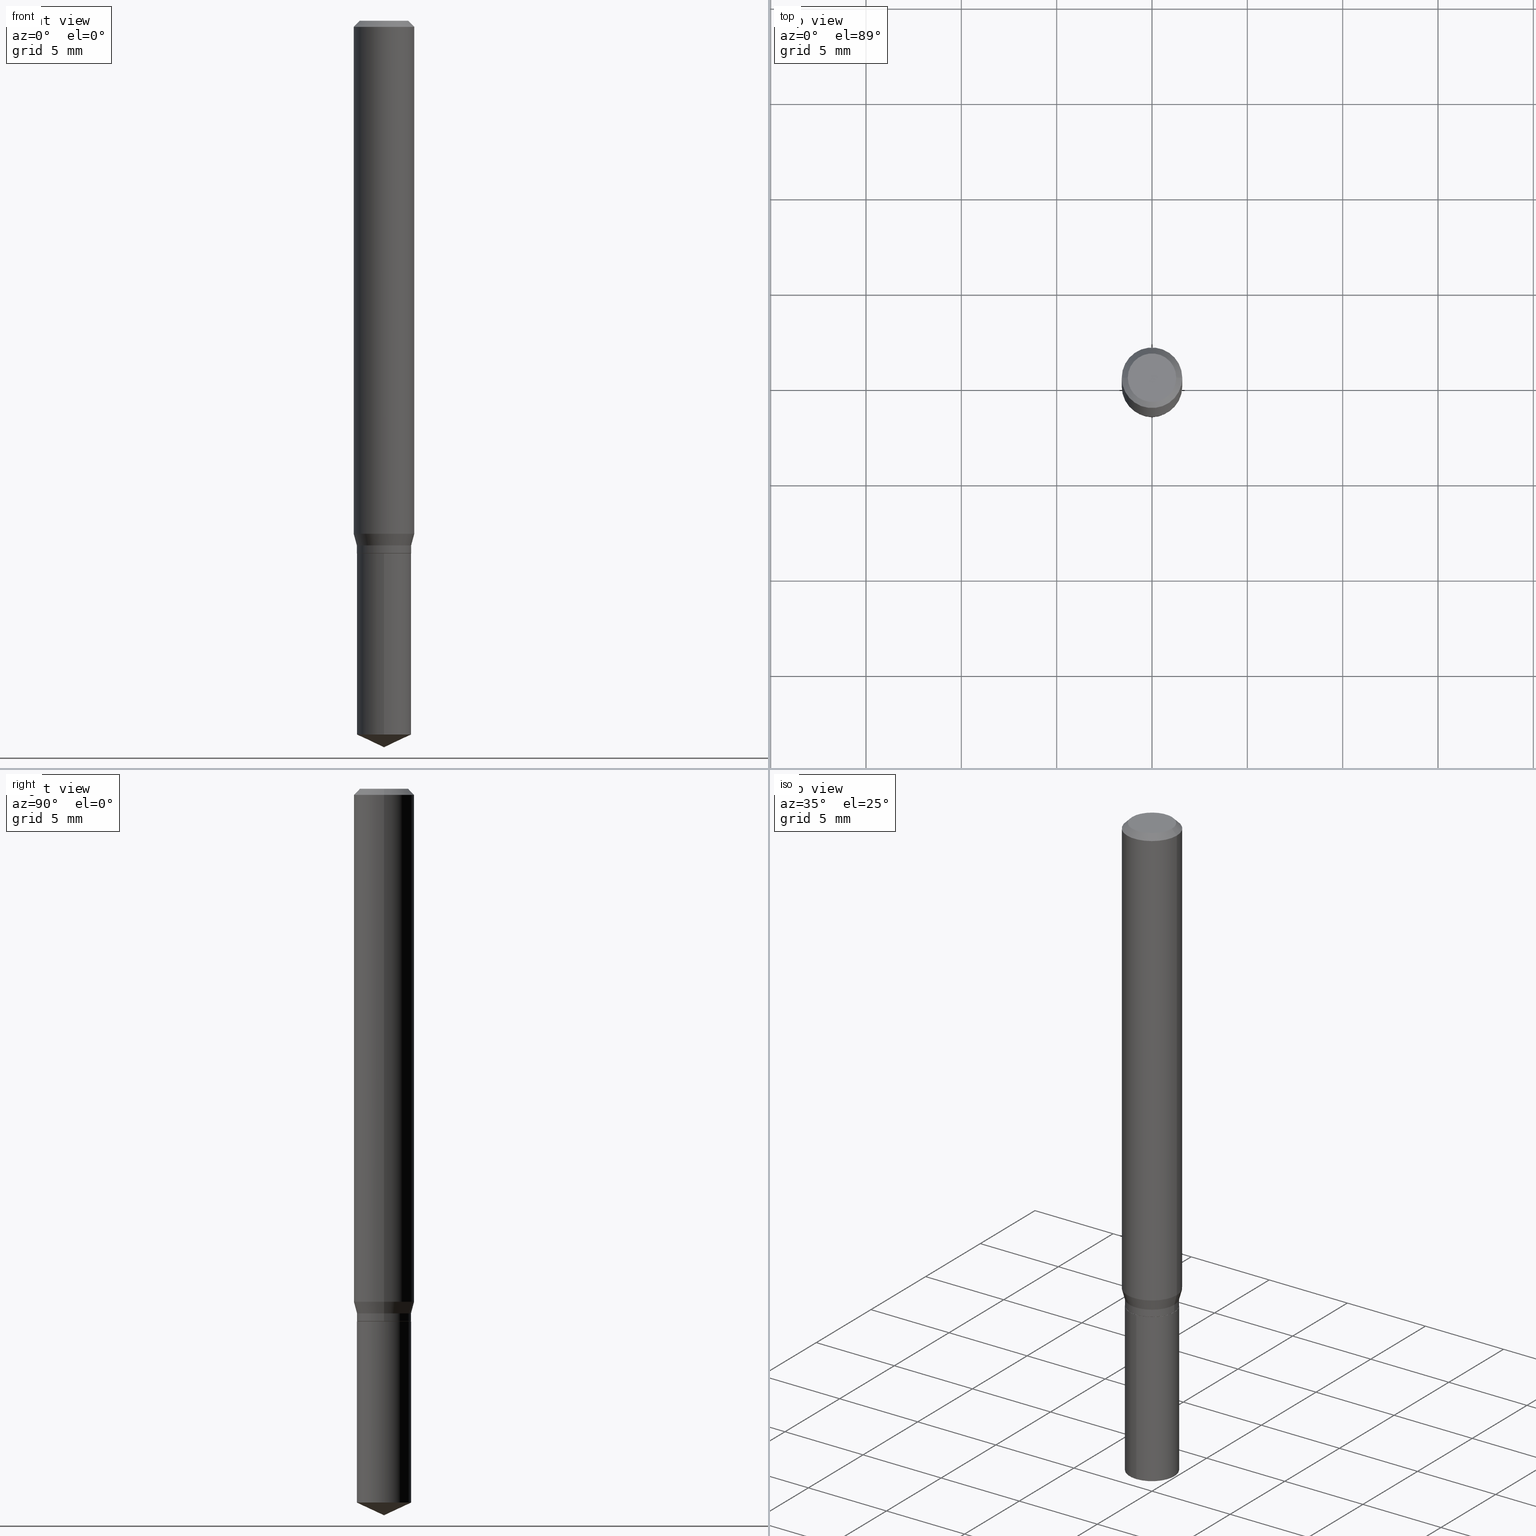
[diagram: canonical four-view strip — front | top / right | iso, engineering-drawing reading convention]
A machine part, canonical four-view strip (front | top / right | iso — engineering-drawing reading convention). The complete STEP part file that produces these views, byte-faithful:
ISO-10303-21;
HEADER;
FILE_DESCRIPTION (( 'STEP AP203' ),
    '1' );
FILE_NAME ('07389.STEP',
    '2024-04-23T20:58:32',
    ( '' ),
    ( '' ),
    'SwSTEP 2.0',
    'SolidWorks 2023',
    '' );
FILE_SCHEMA (( 'CONFIG_CONTROL_DESIGN' ));
ENDSEC;

DATA;
#1 = FACE_OUTER_BOUND ( 'NONE', #128, .T. ) ;
#2 = ORIENTED_EDGE ( 'NONE', *, *, #382, .T. ) ;
#3 = VERTEX_POINT ( 'NONE', #359 ) ;
#4 = EDGE_CURVE ( 'NONE', #3, #78, #45, .T. ) ;
#5 = CARTESIAN_POINT ( 'NONE',  ( -9.260740279983036507E-28, 1.322265303911854087E-13, 37.87007874015748143 ) ) ;
#6 = VECTOR ( 'NONE', #177, 39.37007874015748143 ) ;
#7 = ORIENTED_EDGE ( 'NONE', *, *, #141, .T. ) ;
#8 = CONICAL_SURFACE ( 'NONE', #446, 0.06250000000000000000, 0.7853981633974452814 ) ;
#9 = CARTESIAN_POINT ( 'NONE',  ( 0.05610000000000000403, -4.230627938276238198E-15, -1.099499999999999922 ) ) ;
#10 = ORIENTED_EDGE ( 'NONE', *, *, #224, .F. ) ;
#11 = DIMENSIONAL_EXPONENTS ( 1.000000000000000000, 0.000000000000000000, 0.000000000000000000, 0.000000000000000000, 0.000000000000000000, 0.000000000000000000, 0.000000000000000000 ) ;
#12 = CARTESIAN_POINT ( 'NONE',  ( 2.648931810859739974E-29, -3.781972586234896004E-15, -1.083200000000000163 ) ) ;
#13 = APPROVAL_ROLE ( '' ) ;
#14 = CARTESIAN_POINT ( 'NONE',  ( 0.05610000000000000403, -4.173716792453095604E-15, -1.083200000000000163 ) ) ;
#15 = EDGE_CURVE ( 'NONE', #149, #457, #314, .T. ) ;
#16 = CALENDAR_DATE ( 2024, 23, 4 ) ;
#17 = CARTESIAN_POINT ( 'NONE',  ( 3.986144747614522247E-16, 0.05609999999999615988, -1.100000000000000089 ) ) ;
#18 = VECTOR ( 'NONE', #377, 39.37007874015748143 ) ;
#19 = FACE_OUTER_BOUND ( 'NONE', #420, .T. ) ;
#20 = FACE_OUTER_BOUND ( 'NONE', #33, .T. ) ;
#21 = DIRECTION ( 'NONE',  ( 1.000000000000000000, -6.982962677686266711E-15, 0.000000000000000000 ) ) ;
#22 = DIRECTION ( 'NONE',  ( 1.000000000000000000, -6.982962677686266711E-15, 0.000000000000000000 ) ) ;
#23 = ADVANCED_FACE ( 'NONE', ( #53 ), #168, .T. ) ;
#24 = DIRECTION ( 'NONE',  ( -1.000000000000000000, 6.982962677686266711E-15, 0.000000000000000000 ) ) ;
#25 = DATE_TIME_ROLE ( 'creation_date' ) ;
#26 = DIRECTION ( 'NONE',  ( -2.445468806185136597E-29, 3.491481338843145583E-15, 1.000000000000000000 ) ) ;
#27 = FACE_OUTER_BOUND ( 'NONE', #447, .T. ) ;
#28 = PERSON_AND_ORGANIZATION_ROLE ( 'design_supplier' ) ;
#29 = VERTEX_POINT ( 'NONE', #132 ) ;
#30 = PRODUCT_RELATED_PRODUCT_CATEGORY ( 'detail', '', ( #117 ) ) ;
#31 = DIRECTION ( 'NONE',  ( 1.000000000000000000, -6.982962677686266711E-15, 0.000000000000000000 ) ) ;
#32 = CARTESIAN_POINT ( 'NONE',  ( 0.06250000000000012490, -4.135013284788742571E-15, -1.059314874831558839 ) ) ;
#33 = EDGE_LOOP ( 'NONE', ( #159, #130, #209, #378 ) ) ;
#34 = DIRECTION ( 'NONE',  ( 1.000000000000000000, -6.982962677686266711E-15, 0.000000000000000000 ) ) ;
#35 = DATE_AND_TIME ( #161, #108 ) ;
#36 = AXIS2_PLACEMENT_3D ( 'NONE', #407, #187, #31 ) ;
#37 = APPROVAL_PERSON_ORGANIZATION ( #309, #409, #241 ) ;
#38 = VECTOR ( 'NONE', #225, 39.37007874015748854 ) ;
#39 = CARTESIAN_POINT ( 'NONE',  ( -0.06250000000000012490, -3.254488907583286707E-15, -1.059314874831558839 ) ) ;
#40 = EDGE_LOOP ( 'NONE', ( #73, #426, #363, #157 ) ) ;
#41 = EDGE_CURVE ( 'NONE', #277, #90, #95, .T. ) ;
#42 = DIRECTION ( 'NONE',  ( -6.328713451373362279E-15, -0.9063077870366474942, 0.4226182617407045483 ) ) ;
#43 = ADVANCED_BREP_SHAPE_REPRESENTATION ( '07389', ( #163, #174, #279 ), #218 ) ;
#44 = APPROVAL_PERSON_ORGANIZATION ( #255, #352, #432 ) ;
#45 = LINE ( 'NONE', #134, #394 ) ;
#46 = CIRCLE ( 'NONE', #91, 0.05610000000000000403 ) ;
#47 = ORIENTED_EDGE ( 'NONE', *, *, #123, .T. ) ;
#48 = EDGE_CURVE ( 'NONE', #345, #29, #286, .T. ) ;
#49 = DIRECTION ( 'NONE',  ( 6.982962677686265922E-15, 1.000000000000000000, -3.491580316559632610E-15 ) ) ;
#50 = ORIENTED_EDGE ( 'NONE', *, *, #416, .T. ) ;
#51 =( NAMED_UNIT ( * ) SI_UNIT ( $, .STERADIAN. ) SOLID_ANGLE_UNIT ( ) );
#52 = AXIS2_PLACEMENT_3D ( 'NONE', #76, #302, #240 ) ;
#53 = FACE_OUTER_BOUND ( 'NONE', #40, .T. ) ;
#54 = CC_DESIGN_SECURITY_CLASSIFICATION ( #475, ( #435 ) ) ;
#55 = DIRECTION ( 'NONE',  ( 1.000000000000000000, -6.982962677686266711E-15, 0.000000000000000000 ) ) ;
#56 = PERSON_AND_ORGANIZATION ( #328, #97 ) ;
#57 = CARTESIAN_POINT ( 'NONE',  ( 0.05559999999999999665, -4.228882197606816695E-15, -1.100000000000000089 ) ) ;
#58 = LINE ( 'NONE', #186, #268 ) ;
#59 = DIRECTION ( 'NONE',  ( -2.445468806185136597E-29, 3.491481338843145583E-15, 1.000000000000000000 ) ) ;
#60 = ADVANCED_FACE ( 'NONE', ( #215 ), #109, .T. ) ;
#61 = CLOSED_SHELL ( 'NONE', ( #318, #64, #467, #385, #454 ) ) ;
#62 = AXIS2_PLACEMENT_3D ( 'NONE', #340, #230, #444 ) ;
#63 = CARTESIAN_POINT ( 'NONE',  ( 2.690015686803650369E-29, -3.840629472727460101E-15, -1.100000000000000089 ) ) ;
#64 = ADVANCED_FACE ( 'NONE', ( #332 ), #387, .T. ) ;
#65 = DIRECTION ( 'NONE',  ( 1.000000000000000000, -6.982962677686265922E-15, 4.876176775795935793E-29 ) ) ;
#66 = FACE_OUTER_BOUND ( 'NONE', #310, .T. ) ;
#67 = DIRECTION ( 'NONE',  ( 2.445468806185136597E-29, -3.491481338843145583E-15, -1.000000000000000000 ) ) ;
#68 = LOCAL_TIME ( 16, 58, 32.00000000000000000, #367 ) ;
#69 = DIRECTION ( 'NONE',  ( -2.445468806185136597E-29, 3.491481338843145583E-15, 1.000000000000000000 ) ) ;
#70 = MECHANICAL_CONTEXT ( 'NONE', #267, 'mechanical' ) ;
#71 = ADVANCED_FACE ( 'NONE', ( #290 ), #289, .T. ) ;
#72 = CARTESIAN_POINT ( 'NONE',  ( -0.05610000000000000403, -3.411813684385050821E-15, -1.099499999999999922 ) ) ;
#73 = ORIENTED_EDGE ( 'NONE', *, *, #371, .F. ) ;
#74 = CARTESIAN_POINT ( 'NONE',  ( -0.06250000000000000000, -1.427021607234381037E-15, -0.01250000000000008223 ) ) ;
#75 = ORIENTED_EDGE ( 'NONE', *, *, #287, .F. ) ;
#76 = CARTESIAN_POINT ( 'NONE',  ( 2.690015686803650369E-29, -3.840629472727460101E-15, -1.100000000000000089 ) ) ;
#77 = COORDINATED_UNIVERSAL_TIME_OFFSET ( 5, 0, .BEHIND. ) ;
#78 = VERTEX_POINT ( 'NONE', #17 ) ;
#79 = CARTESIAN_POINT ( 'NONE',  ( -3.917442062181726311E-16, -0.05610000000000384124, -1.099999999999999867 ) ) ;
#80 = APPROVAL_STATUS ( 'not_yet_approved' ) ;
#81 = CIRCLE ( 'NONE', #221, 0.06250000000000000000 ) ;
#82 = AXIS2_PLACEMENT_3D ( 'NONE', #293, #400, #434 ) ;
#83 = ADVANCED_FACE ( 'NONE', ( #19 ), #142, .T. ) ;
#84 = DATE_AND_TIME ( #425, #219 ) ;
#85 = SHAPE_DEFINITION_REPRESENTATION ( #104, #43 ) ;
#86 = LINE ( 'NONE', #242, #88 ) ;
#87 = ORIENTED_EDGE ( 'NONE', *, *, #48, .T. ) ;
#88 = VECTOR ( 'NONE', #206, 39.37007874015748143 ) ;
#89 = EDGE_CURVE ( 'NONE', #78, #356, #162, .T. ) ;
#90 = VERTEX_POINT ( 'NONE', #179 ) ;
#91 = AXIS2_PLACEMENT_3D ( 'NONE', #258, #473, #254 ) ;
#92 = CARTESIAN_POINT ( 'NONE',  ( -0.05559999999999999665, -3.445567711644844521E-15, -1.100000000000000089 ) ) ;
#93 = DIRECTION ( 'NONE',  ( 1.000000000000000000, -6.982962677686265922E-15, 4.875957971899673662E-29 ) ) ;
#94 = PERSON_AND_ORGANIZATION ( #328, #97 ) ;
#95 = LINE ( 'NONE', #391, #361 ) ;
#96 = CALENDAR_DATE ( 2024, 23, 4 ) ;
#97 = ORGANIZATION ( 'UNSPECIFIED', 'UNSPECIFIED', '' ) ;
#98 = ORIENTED_EDGE ( 'NONE', *, *, #276, .T. ) ;
#99 = CC_DESIGN_DATE_AND_TIME_ASSIGNMENT ( #330, #25, ( #427 ) ) ;
#100 = LINE ( 'NONE', #362, #403 ) ;
#101 = DIRECTION ( 'NONE',  ( -2.445468806185136597E-29, 3.491481338843145583E-15, 1.000000000000000000 ) ) ;
#102 = DIRECTION ( 'NONE',  ( -2.445468806185136597E-29, 3.491481338843145583E-15, 1.000000000000000000 ) ) ;
#103 =( CONVERSION_BASED_UNIT ( 'INCH', #288 ) LENGTH_UNIT ( ) NAMED_UNIT ( #11 ) );
#104 = PRODUCT_DEFINITION_SHAPE ( 'NONE', 'NONE',  #427 ) ;
#105 = DIRECTION ( 'NONE',  ( 1.000000000000000000, -6.982962677686264344E-15, 0.000000000000000000 ) ) ;
#106 = LINE ( 'NONE', #430, #321 ) ;
#107 = EDGE_CURVE ( 'NONE', #452, #278, #445, .T. ) ;
#108 = LOCAL_TIME ( 16, 58, 32.00000000000000000, #77 ) ;
#109 = CONICAL_SURFACE ( 'NONE', #468, 0.05559999999999999665, 0.7853981633974141952 ) ;
#110 = AXIS2_PLACEMENT_3D ( 'NONE', #5, #171, #460 ) ;
#111 = DIRECTION ( 'NONE',  ( 2.445468806185136597E-29, -3.491481338843145583E-15, -1.000000000000000000 ) ) ;
#112 = DIRECTION ( 'NONE',  ( -2.445468806185136597E-29, 3.491481338843145583E-15, 1.000000000000000000 ) ) ;
#113 = EDGE_CURVE ( 'NONE', #278, #452, #402, .T. ) ;
#114 = CALENDAR_DATE ( 2024, 23, 4 ) ;
#115 = PLANE ( 'NONE',  #62 ) ;
#116 = ORIENTED_EDGE ( 'NONE', *, *, #4, .T. ) ;
#117 = PRODUCT ( '07389', '07389', '', ( #70 ) ) ;
#118 = EDGE_LOOP ( 'NONE', ( #449, #75 ) ) ;
#119 = DIRECTION ( 'NONE',  ( -2.445468806185136597E-29, 3.491481338843145583E-15, 1.000000000000000000 ) ) ;
#120 = DIRECTION ( 'NONE',  ( -1.000000000000000000, 6.982962677686266711E-15, 0.000000000000000000 ) ) ;
#121 = DATE_TIME_ROLE ( 'classification_date' ) ;
#122 = ORIENTED_EDGE ( 'NONE', *, *, #41, .F. ) ;
#123 = EDGE_CURVE ( 'NONE', #90, #151, #458, .T. ) ;
#124 = LOCAL_TIME ( 16, 58, 32.00000000000000000, #229 ) ;
#125 = ORIENTED_EDGE ( 'NONE', *, *, #252, .T. ) ;
#126 = ORIENTED_EDGE ( 'NONE', *, *, #461, .T. ) ;
#127 = EDGE_CURVE ( 'NONE', #356, #78, #298, .T. ) ;
#128 = EDGE_LOOP ( 'NONE', ( #176, #415 ) ) ;
#129 = AXIS2_PLACEMENT_3D ( 'NONE', #296, #213, #139 ) ;
#130 = ORIENTED_EDGE ( 'NONE', *, *, #312, .T. ) ;
#131 = AXIS2_PLACEMENT_3D ( 'NONE', #140, #184, #438 ) ;
#132 = CARTESIAN_POINT ( 'NONE',  ( -3.917442062181634113E-16, -0.05610000000000514575, -1.473840140377504326 ) ) ;
#133 = DIRECTION ( 'NONE',  ( 0.000000000000000000, 0.000000000000000000, 1.000000000000000000 ) ) ;
#134 = CARTESIAN_POINT ( 'NONE',  ( 3.986144747614430049E-16, 0.05609999999999615988, -1.100000000000000089 ) ) ;
#135 = ADVANCED_FACE ( 'NONE', ( #476 ), #366, .F. ) ;
#136 = APPLICATION_PROTOCOL_DEFINITION ( 'international standard', 'config_control_design', 1994, #453 ) ;
#137 = DIRECTION ( 'NONE',  ( -2.438088387897960049E-29, 3.491481338843145188E-15, 1.000000000000000000 ) ) ;
#138 = APPROVAL_STATUS ( 'not_yet_approved' ) ;
#139 = DIRECTION ( 'NONE',  ( 1.000000000000000000, -6.982962677686264344E-15, 0.000000000000000000 ) ) ;
#140 = CARTESIAN_POINT ( 'NONE',  ( 0.000000000000000000, 0.000000000000000000, 0.000000000000000000 ) ) ;
#141 = EDGE_CURVE ( 'NONE', #457, #249, #106, .T. ) ;
#142 = CYLINDRICAL_SURFACE ( 'NONE', #189, 0.05610000000000000403 ) ;
#143 = CYLINDRICAL_SURFACE ( 'NONE', #369, 0.05610000000000000403 ) ;
#144 = CARTESIAN_POINT ( 'NONE',  ( -9.260740279983036507E-28, 1.322265303911854087E-13, 37.87007874015748143 ) ) ;
#145 = CARTESIAN_POINT ( 'NONE',  ( 2.690015686803650369E-29, -3.840629472727460101E-15, -1.100000000000000089 ) ) ;
#146 = CONICAL_SURFACE ( 'NONE', #331, 0.06250000000000000000, 0.7853981633974452814 ) ;
#147 = DIRECTION ( 'NONE',  ( -2.445399690415121530E-29, 3.491580316559632610E-15, 1.000000000000000000 ) ) ;
#148 = DIRECTION ( 'NONE',  ( -2.445399690415121810E-29, 3.491580316559632610E-15, 1.000000000000000000 ) ) ;
#149 = VERTEX_POINT ( 'NONE', #373 ) ;
#150 = COORDINATED_UNIVERSAL_TIME_OFFSET ( 5, 0, .BEHIND. ) ;
#151 = VERTEX_POINT ( 'NONE', #14 ) ;
#152 = AXIS2_PLACEMENT_3D ( 'NONE', #357, #319, #49 ) ;
#153 = APPROVAL_PERSON_ORGANIZATION ( #376, #365, #13 ) ;
#154 = CARTESIAN_POINT ( 'NONE',  ( 2.690015686803650369E-29, -3.840629472727460101E-15, -1.100000000000000089 ) ) ;
#155 = VECTOR ( 'NONE', #246, 39.37007874015748854 ) ;
#156 = EDGE_CURVE ( 'NONE', #485, #277, #46, .T. ) ;
#157 = ORIENTED_EDGE ( 'NONE', *, *, #382, .F. ) ;
#158 = EDGE_CURVE ( 'NONE', #278, #348, #404, .T. ) ;
#159 = ORIENTED_EDGE ( 'NONE', *, *, #4, .F. ) ;
#160 = DIRECTION ( 'NONE',  ( 1.000000000000000000, -6.982962677686266711E-15, 4.876176775795935793E-29 ) ) ;
#161 = CALENDAR_DATE ( 2024, 23, 4 ) ;
#162 = CIRCLE ( 'NONE', #180, 0.05610000000000000403 ) ;
#163 = MANIFOLD_SOLID_BREP ( 'Body-Move/Copy2[1]', #61 ) ;
#164 = EDGE_LOOP ( 'NONE', ( #231, #87, #202 ) ) ;
#165 = EDGE_CURVE ( 'NONE', #167, #485, #222, .T. ) ;
#166 = PLANE ( 'NONE',  #152 ) ;
#167 = VERTEX_POINT ( 'NONE', #372 ) ;
#168 = CYLINDRICAL_SURFACE ( 'NONE', #305, 0.06250000000000006939 ) ;
#169 = CIRCLE ( 'NONE', #257, 0.05559999999999999665 ) ;
#170 = CC_DESIGN_APPROVAL ( #352, ( #435 ) ) ;
#171 = DIRECTION ( 'NONE',  ( -2.445399690415121530E-29, 3.491580316559632610E-15, 1.000000000000000000 ) ) ;
#172 = AXIS2_PLACEMENT_3D ( 'NONE', #465, #59, #256 ) ;
#173 = CARTESIAN_POINT ( 'NONE',  ( 0.000000000000000000, 0.000000000000000000, 0.000000000000000000 ) ) ;
#174 = MANIFOLD_SOLID_BREP ( 'Body-Move/Copy2[2]', #237 ) ;
#175 = ADVANCED_FACE ( 'NONE', ( #185 ), #8, .T. ) ;
#176 = ORIENTED_EDGE ( 'NONE', *, *, #127, .T. ) ;
#177 = DIRECTION ( 'NONE',  ( -2.445468806185136877E-29, 3.491481338843145188E-15, 1.000000000000000000 ) ) ;
#178 = CARTESIAN_POINT ( 'NONE',  ( 0.000000000000000000, 0.000000000000000000, 0.000000000000000000 ) ) ;
#179 = CARTESIAN_POINT ( 'NONE',  ( -0.05610000000000000403, -3.411813684385050821E-15, -1.083200000000000163 ) ) ;
#180 = AXIS2_PLACEMENT_3D ( 'NONE', #63, #183, #291 ) ;
#181 = CIRCLE ( 'NONE', #244, 0.05610000000000000403 ) ;
#182 = EDGE_CURVE ( 'NONE', #29, #3, #275, .T. ) ;
#183 = DIRECTION ( 'NONE',  ( -2.445399690415121530E-29, 3.491580316559632610E-15, 1.000000000000000000 ) ) ;
#184 = DIRECTION ( 'NONE',  ( -2.445468806185136597E-29, 3.491481338843145583E-15, 1.000000000000000000 ) ) ;
#185 = FACE_OUTER_BOUND ( 'NONE', #451, .T. ) ;
#186 = CARTESIAN_POINT ( 'NONE',  ( 0.05610000000000000403, -4.173716792453095604E-15, -1.083200000000000163 ) ) ;
#187 = DIRECTION ( 'NONE',  ( -2.445468806185136597E-29, 3.491481338843145583E-15, 1.000000000000000000 ) ) ;
#188 = CARTESIAN_POINT ( 'NONE',  ( 3.604204250347545418E-29, -5.145922348409444387E-15, -1.473840140377504548 ) ) ;
#189 = AXIS2_PLACEMENT_3D ( 'NONE', #178, #326, #336 ) ;
#190 = DIRECTION ( 'NONE',  ( 1.000000000000000000, -6.982962677686266711E-15, 0.000000000000000000 ) ) ;
#191 = CC_DESIGN_PERSON_AND_ORGANIZATION_ASSIGNMENT ( #56, #264, ( #427 ) ) ;
#192 = EDGE_LOOP ( 'NONE', ( #386, #195 ) ) ;
#193 = SECURITY_CLASSIFICATION_LEVEL ( 'unclassified' ) ;
#194 = DIRECTION ( 'NONE',  ( -2.445468806185136597E-29, 3.491481338843145583E-15, 1.000000000000000000 ) ) ;
#195 = ORIENTED_EDGE ( 'NONE', *, *, #15, .T. ) ;
#196 = LINE ( 'NONE', #263, #18 ) ;
#197 = AXIS2_PLACEMENT_3D ( 'NONE', #344, #442, #410 ) ;
#198 = CARTESIAN_POINT ( 'NONE',  ( 3.668099535622682715E-29, -5.237370474839449507E-15, -1.500000000000000222 ) ) ;
#199 = EDGE_CURVE ( 'NONE', #457, #149, #281, .T. ) ;
#200 = AXIS2_PLACEMENT_3D ( 'NONE', #433, #101, #105 ) ;
#201 = AXIS2_PLACEMENT_3D ( 'NONE', #483, #412, #306 ) ;
#202 = ORIENTED_EDGE ( 'NONE', *, *, #312, .F. ) ;
#203 = FACE_OUTER_BOUND ( 'NONE', #421, .T. ) ;
#204 = ORIENTED_EDGE ( 'NONE', *, *, #262, .T. ) ;
#205 = CARTESIAN_POINT ( 'NONE',  ( 3.893286209682126177E-47, -5.558580879666067980E-33, -1.592040838891559689E-18 ) ) ;
#206 = DIRECTION ( 'NONE',  ( 0.7071067811865453523, -7.319954787623248157E-15, -0.7071067811865496822 ) ) ;
#207 = DIRECTION ( 'NONE',  ( -2.445399690415121810E-29, 3.491580316559632610E-15, 1.000000000000000000 ) ) ;
#208 = FACE_OUTER_BOUND ( 'NONE', #164, .T. ) ;
#209 = ORIENTED_EDGE ( 'NONE', *, *, #282, .T. ) ;
#210 = ADVANCED_FACE ( 'NONE', ( #265 ), #146, .T. ) ;
#211 = DIRECTION ( 'NONE',  ( -2.445468806185136877E-29, 3.491481338843145188E-15, 1.000000000000000000 ) ) ;
#212 = CARTESIAN_POINT ( 'NONE',  ( 0.000000000000000000, 0.000000000000000000, 0.000000000000000000 ) ) ;
#213 = DIRECTION ( 'NONE',  ( -2.445468806185136597E-29, 3.491481338843145583E-15, 1.000000000000000000 ) ) ;
#214 =( LENGTH_UNIT ( ) NAMED_UNIT ( * ) SI_UNIT ( $, .METRE. ) );
#215 = FACE_OUTER_BOUND ( 'NONE', #320, .T. ) ;
#216 = CC_DESIGN_PERSON_AND_ORGANIZATION_ASSIGNMENT ( #408, #28, ( #435 ) ) ;
#217 = DIRECTION ( 'NONE',  ( 0.2588190451025206285, 1.565188264969627095E-15, 0.9659258262890682012 ) ) ;
#218 =( GEOMETRIC_REPRESENTATION_CONTEXT ( 3 ) GLOBAL_UNCERTAINTY_ASSIGNED_CONTEXT ( ( #272 ) ) GLOBAL_UNIT_ASSIGNED_CONTEXT ( ( #103, #339, #51 ) ) REPRESENTATION_CONTEXT ( 'NONE', 'WORKASPACE' ) );
#219 = LOCAL_TIME ( 16, 58, 32.00000000000000000, #150 ) ;
#220 = CARTESIAN_POINT ( 'NONE',  ( 2.690015686803650369E-29, -3.840629472727460101E-15, -1.100000000000000089 ) ) ;
#221 = AXIS2_PLACEMENT_3D ( 'NONE', #327, #102, #466 ) ;
#222 = LINE ( 'NONE', #57, #38 ) ;
#223 = FACE_OUTER_BOUND ( 'NONE', #354, .T. ) ;
#224 = EDGE_CURVE ( 'NONE', #90, #452, #484, .T. ) ;
#225 = DIRECTION ( 'NONE',  ( 0.7071067811865232589, -2.468850131082003836E-15, 0.7071067811865715536 ) ) ;
#226 = DATE_AND_TIME ( #114, #322 ) ;
#227 = EDGE_CURVE ( 'NONE', #277, #485, #456, .T. ) ;
#228 = CARTESIAN_POINT ( 'NONE',  ( -0.05559999999999999665, -3.442918484470733319E-15, -1.100000000000000089 ) ) ;
#229 = COORDINATED_UNIVERSAL_TIME_OFFSET ( 5, 0, .BEHIND. ) ;
#230 = DIRECTION ( 'NONE',  ( 2.438088387897960049E-29, -3.491481338843145188E-15, -1.000000000000000000 ) ) ;
#231 = ORIENTED_EDGE ( 'NONE', *, *, #262, .F. ) ;
#232 = CARTESIAN_POINT ( 'NONE',  ( -0.05610000000000000403, -3.383358111473479524E-15, -1.083200000000000163 ) ) ;
#233 = ORIENTED_EDGE ( 'NONE', *, *, #182, .F. ) ;
#234 = ORIENTED_EDGE ( 'NONE', *, *, #41, .T. ) ;
#235 = CONICAL_SURFACE ( 'NONE', #295, 0.05559999999999999665, 0.7853981633974141952 ) ;
#236 = LINE ( 'NONE', #292, #6 ) ;
#237 = CLOSED_SHELL ( 'NONE', ( #333, #210, #335, #440, #393, #83, #71, #23, #175, #248, #135, #60 ) ) ;
#238 = AXIS2_PLACEMENT_3D ( 'NONE', #12, #470, #418 ) ;
#239 = ORIENTED_EDGE ( 'NONE', *, *, #156, .T. ) ;
#240 = DIRECTION ( 'NONE',  ( -6.982962677686265133E-15, -1.000000000000000000, 2.434802133390608632E-15 ) ) ;
#241 = APPROVAL_ROLE ( '' ) ;
#242 = CARTESIAN_POINT ( 'NONE',  ( 0.06250000000000000000, -4.724246415962602840E-16, -0.01250000000000008223 ) ) ;
#243 = EDGE_LOOP ( 'NONE', ( #10, #47, #50, #274 ) ) ;
#244 = AXIS2_PLACEMENT_3D ( 'NONE', #375, #26, #190 ) ;
#245 = ORIENTED_EDGE ( 'NONE', *, *, #127, .F. ) ;
#246 = DIRECTION ( 'NONE',  ( -0.7071067811865232589, 7.493145998870265808E-15, 0.7071067811865715536 ) ) ;
#247 = DIRECTION ( 'NONE',  ( -2.445468806185136597E-29, 3.491481338843145583E-15, 1.000000000000000000 ) ) ;
#248 = ADVANCED_FACE ( 'NONE', ( #413 ), #115, .F. ) ;
#249 = VERTEX_POINT ( 'NONE', #74 ) ;
#250 = DATE_AND_TIME ( #96, #124 ) ;
#251 = ORIENTED_EDGE ( 'NONE', *, *, #461, .F. ) ;
#252 = EDGE_CURVE ( 'NONE', #167, #266, #259, .T. ) ;
#253 = APPLICATION_PROTOCOL_DEFINITION ( 'international standard', 'config_control_design', 1994, #267 ) ;
#254 = DIRECTION ( 'NONE',  ( 1.000000000000000000, -6.982962677686266711E-15, 0.000000000000000000 ) ) ;
#255 = PERSON_AND_ORGANIZATION ( #328, #97 ) ;
#256 = DIRECTION ( 'NONE',  ( 1.000000000000000000, -6.982962677686266711E-15, 0.000000000000000000 ) ) ;
#257 = AXIS2_PLACEMENT_3D ( 'NONE', #300, #471, #21 ) ;
#258 = CARTESIAN_POINT ( 'NONE',  ( 2.688792952400557567E-29, -3.838883732058038598E-15, -1.099499999999999922 ) ) ;
#259 = CIRCLE ( 'NONE', #197, 0.05559999999999999665 ) ;
#260 = DIRECTION ( 'NONE',  ( -0.7071067811865453523, 2.468850131082234184E-15, -0.7071067811865496822 ) ) ;
#261 = DIRECTION ( 'NONE',  ( -6.982962677686265133E-15, -1.000000000000000000, 2.434802133390608632E-15 ) ) ;
#262 = EDGE_CURVE ( 'NONE', #345, #3, #196, .T. ) ;
#263 = CARTESIAN_POINT ( 'NONE',  ( 3.668252923656895710E-29, -5.237152723863177100E-15, -1.500000000000000222 ) ) ;
#264 = PERSON_AND_ORGANIZATION_ROLE ( 'creator' ) ;
#265 = FACE_OUTER_BOUND ( 'NONE', #317, .T. ) ;
#266 = VERTEX_POINT ( 'NONE', #228 ) ;
#267 = APPLICATION_CONTEXT ( 'configuration controlled 3d designs of mechanical parts and assemblies' ) ;
#268 = VECTOR ( 'NONE', #217, 39.37007874015748854 ) ;
#269 = DIRECTION ( 'NONE',  ( -0.2588190451025206285, 5.211531920934544731E-15, 0.9659258262890682012 ) ) ;
#270 = ORIENTED_EDGE ( 'NONE', *, *, #477, .T. ) ;
#271 = CYLINDRICAL_SURFACE ( 'NONE', #422, 0.06250000000000006939 ) ;
#272 = UNCERTAINTY_MEASURE_WITH_UNIT (LENGTH_MEASURE( 1.000000000000000082E-05 ), #103, 'distance_accuracy_value', 'NONE');
#273 = CARTESIAN_POINT ( 'NONE',  ( 2.688792952400557567E-29, -3.838883732058038598E-15, -1.099499999999999922 ) ) ;
#274 = ORIENTED_EDGE ( 'NONE', *, *, #107, .F. ) ;
#275 = CIRCLE ( 'NONE', #323, 0.05610000000000000403 ) ;
#276 = EDGE_CURVE ( 'NONE', #151, #90, #181, .T. ) ;
#277 = VERTEX_POINT ( 'NONE', #72 ) ;
#278 = VERTEX_POINT ( 'NONE', #32 ) ;
#279 = AXIS2_PLACEMENT_3D ( 'NONE', #212, #133, #441 ) ;
#280 = VECTOR ( 'NONE', #42, 39.37007874015748854 ) ;
#281 = CIRCLE ( 'NONE', #360, 0.04999999999999999584 ) ;
#282 = EDGE_CURVE ( 'NONE', #29, #356, #346, .T. ) ;
#283 = ORIENTED_EDGE ( 'NONE', *, *, #141, .F. ) ;
#284 = ORIENTED_EDGE ( 'NONE', *, *, #158, .F. ) ;
#285 = COORDINATED_UNIVERSAL_TIME_OFFSET ( 5, 0, .BEHIND. ) ;
#286 = LINE ( 'NONE', #429, #280 ) ;
#287 = EDGE_CURVE ( 'NONE', #266, #167, #169, .T. ) ;
#288 = LENGTH_MEASURE_WITH_UNIT ( LENGTH_MEASURE( 0.02539999999999999897 ), #214 );
#289 = CONICAL_SURFACE ( 'NONE', #329, 0.05610000000000000403, 0.2617993877991493523 ) ;
#290 = FACE_OUTER_BOUND ( 'NONE', #243, .T. ) ;
#291 = DIRECTION ( 'NONE',  ( -6.982962677686265133E-15, -1.000000000000000000, 2.434802133390608632E-15 ) ) ;
#292 = CARTESIAN_POINT ( 'NONE',  ( -0.06250000000000006939, 4.440892098500631092E-16, -3.074334431409319267E-30 ) ) ;
#293 = CARTESIAN_POINT ( 'NONE',  ( 2.690015686803650369E-29, -3.840629472727460101E-15, -1.100000000000000089 ) ) ;
#294 = DIRECTION ( 'NONE',  ( -2.445399690415121530E-29, 3.491580316559632610E-15, 1.000000000000000000 ) ) ;
#295 = AXIS2_PLACEMENT_3D ( 'NONE', #154, #119, #34 ) ;
#296 = CARTESIAN_POINT ( 'NONE',  ( 2.590521482328489737E-29, -3.698578117433350112E-15, -1.059314874831558839 ) ) ;
#297 = CC_DESIGN_PERSON_AND_ORGANIZATION_ASSIGNMENT ( #94, #463, ( #117 ) ) ;
#298 = CIRCLE ( 'NONE', #82, 0.05610000000000000403 ) ;
#299 = DIRECTION ( 'NONE',  ( -6.982962677686265133E-15, -1.000000000000000000, 4.869604266781217263E-15 ) ) ;
#300 = CARTESIAN_POINT ( 'NONE',  ( 2.690015686803650369E-29, -3.840629472727460101E-15, -1.100000000000000089 ) ) ;
#301 = ORIENTED_EDGE ( 'NONE', *, *, #448, .F. ) ;
#302 = DIRECTION ( 'NONE',  ( -2.445399690415121530E-29, 3.491580316559632610E-15, 1.000000000000000000 ) ) ;
#303 = EDGE_CURVE ( 'NONE', #348, #249, #401, .T. ) ;
#304 = ORIENTED_EDGE ( 'NONE', *, *, #224, .T. ) ;
#305 = AXIS2_PLACEMENT_3D ( 'NONE', #173, #247, #462 ) ;
#306 = DIRECTION ( 'NONE',  ( -6.982962677686265133E-15, -1.000000000000000000, 4.869604266781217263E-15 ) ) ;
#307 = ORIENTED_EDGE ( 'NONE', *, *, #123, .F. ) ;
#308 = CARTESIAN_POINT ( 'NONE',  ( 0.06250000000000000000, -4.800786840909312308E-16, -0.01250000000000008223 ) ) ;
#309 = PERSON_AND_ORGANIZATION ( #328, #97 ) ;
#310 = EDGE_LOOP ( 'NONE', ( #98, #304, #464, #450 ) ) ;
#311 = ORIENTED_EDGE ( 'NONE', *, *, #303, .T. ) ;
#312 = EDGE_CURVE ( 'NONE', #3, #29, #349, .T. ) ;
#313 = FACE_OUTER_BOUND ( 'NONE', #488, .T. ) ;
#314 = CIRCLE ( 'NONE', #490, 0.04999999999999999584 ) ;
#315 = APPROVAL_DATE_TIME ( #35, #409 ) ;
#316 = ORIENTED_EDGE ( 'NONE', *, *, #448, .T. ) ;
#317 = EDGE_LOOP ( 'NONE', ( #341, #316, #311, #283 ) ) ;
#318 = ADVANCED_FACE ( 'NONE', ( #27 ), #342, .T. ) ;
#319 = DIRECTION ( 'NONE',  ( 2.445399690415121250E-29, -3.491580316559632610E-15, -1.000000000000000000 ) ) ;
#320 = EDGE_LOOP ( 'NONE', ( #251, #482, #424, #353 ) ) ;
#321 = VECTOR ( 'NONE', #260, 39.37007874015748143 ) ;
#322 = LOCAL_TIME ( 16, 58, 32.00000000000000000, #285 ) ;
#323 = AXIS2_PLACEMENT_3D ( 'NONE', #188, #147, #299 ) ;
#324 = ORIENTED_EDGE ( 'NONE', *, *, #48, .F. ) ;
#325 = ORIENTED_EDGE ( 'NONE', *, *, #199, .F. ) ;
#326 = DIRECTION ( 'NONE',  ( -2.445468806185136597E-29, 3.491481338843145583E-15, 1.000000000000000000 ) ) ;
#327 = CARTESIAN_POINT ( 'NONE',  ( 3.056836007731440977E-31, -4.364351673553961068E-17, -0.01250000000000008223 ) ) ;
#328 = PERSON ( 'UNSPECIFIED', 'UNSPECIFIED', 'UNSPECIFIED', ('UNSPECIFIED'), ('UNSPECIFIED'), ('UNSPECIFIED') ) ;
#329 = AXIS2_PLACEMENT_3D ( 'NONE', #370, #472, #22 ) ;
#330 = DATE_AND_TIME ( #16, #68 ) ;
#331 = AXIS2_PLACEMENT_3D ( 'NONE', #406, #67, #120 ) ;
#332 = FACE_OUTER_BOUND ( 'NONE', #411, .T. ) ;
#333 = ADVANCED_FACE ( 'NONE', ( #203 ), #235, .T. ) ;
#334 = DIRECTION ( 'NONE',  ( -6.982962677686268288E-15, -1.000000000000000000, 3.520397390770490158E-15 ) ) ;
#335 = ADVANCED_FACE ( 'NONE', ( #313 ), #271, .T. ) ;
#336 = DIRECTION ( 'NONE',  ( 1.000000000000000000, -6.982962677686266711E-15, 4.876176775795935793E-29 ) ) ;
#337 = DIRECTION ( 'NONE',  ( -2.445468806185136597E-29, 3.491481338843145583E-15, 1.000000000000000000 ) ) ;
#338 = DESIGN_CONTEXT ( 'detailed design', #453, 'design' ) ;
#339 =( NAMED_UNIT ( * ) PLANE_ANGLE_UNIT ( ) SI_UNIT ( $, .RADIAN. ) );
#340 = CARTESIAN_POINT ( 'NONE',  ( 1.946643104841063088E-47, -2.779290439833033990E-33, -7.960204194457798443E-19 ) ) ;
#341 = ORIENTED_EDGE ( 'NONE', *, *, #15, .F. ) ;
#342 = CYLINDRICAL_SURFACE ( 'NONE', #52, 0.05610000000000000403 ) ;
#343 = PERSON_AND_ORGANIZATION ( #328, #97 ) ;
#344 = CARTESIAN_POINT ( 'NONE',  ( 2.690015686803650369E-29, -3.840629472727460101E-15, -1.100000000000000089 ) ) ;
#345 = VERTEX_POINT ( 'NONE', #198 ) ;
#346 = LINE ( 'NONE', #479, #347 ) ;
#347 = VECTOR ( 'NONE', #148, 39.37007874015748143 ) ;
#348 = VERTEX_POINT ( 'NONE', #308 ) ;
#349 = CIRCLE ( 'NONE', #201, 0.05610000000000000403 ) ;
#350 = ORIENTED_EDGE ( 'NONE', *, *, #282, .F. ) ;
#351 = CARTESIAN_POINT ( 'NONE',  ( 0.000000000000000000, 0.000000000000000000, 0.000000000000000000 ) ) ;
#352 = APPROVAL ( #138, 'UNSPECIFIED' ) ;
#353 = ORIENTED_EDGE ( 'NONE', *, *, #227, .F. ) ;
#354 = EDGE_LOOP ( 'NONE', ( #239, #234, #414, #417 ) ) ;
#355 = AXIS2_PLACEMENT_3D ( 'NONE', #144, #368, #334 ) ;
#356 = VERTEX_POINT ( 'NONE', #79 ) ;
#357 = CARTESIAN_POINT ( 'NONE',  ( 2.690015686803650369E-29, -3.840629472727460101E-15, -1.100000000000000089 ) ) ;
#358 = DIRECTION ( 'NONE',  ( -2.445468806185136597E-29, 3.491481338843145583E-15, 1.000000000000000000 ) ) ;
#359 = CARTESIAN_POINT ( 'NONE',  ( 3.986144747614521754E-16, 0.05609999999999484149, -1.473840140377504770 ) ) ;
#360 = AXIS2_PLACEMENT_3D ( 'NONE', #439, #112, #396 ) ;
#361 = VECTOR ( 'NONE', #211, 39.37007874015748143 ) ;
#362 = CARTESIAN_POINT ( 'NONE',  ( 0.05610000000000000403, -3.917442062181996003E-16, 2.735535171221520123E-30 ) ) ;
#363 = ORIENTED_EDGE ( 'NONE', *, *, #158, .T. ) ;
#364 = APPROVAL_STATUS ( 'not_yet_approved' ) ;
#365 = APPROVAL ( #364, 'UNSPECIFIED' ) ;
#366 = PLANE ( 'NONE',  #474 ) ;
#367 = COORDINATED_UNIVERSAL_TIME_OFFSET ( 5, 0, .BEHIND. ) ;
#368 = DIRECTION ( 'NONE',  ( -2.445399690415121530E-29, 3.491580316559632610E-15, 1.000000000000000000 ) ) ;
#369 = AXIS2_PLACEMENT_3D ( 'NONE', #145, #294, #261 ) ;
#370 = CARTESIAN_POINT ( 'NONE',  ( 2.648931810859739974E-29, -3.781972586234896004E-15, -1.083200000000000163 ) ) ;
#371 = EDGE_CURVE ( 'NONE', #452, #249, #236, .T. ) ;
#372 = CARTESIAN_POINT ( 'NONE',  ( 0.05559999999999999665, -4.228882197606816695E-15, -1.100000000000000089 ) ) ;
#373 = CARTESIAN_POINT ( 'NONE',  ( 0.04999999999999999584, -4.077247707424184212E-16, -1.592040838888913461E-18 ) ) ;
#374 = APPROVAL_DATE_TIME ( #226, #365 ) ;
#375 = CARTESIAN_POINT ( 'NONE',  ( 2.648931810859739974E-29, -3.781972586234896004E-15, -1.083200000000000163 ) ) ;
#376 = PERSON_AND_ORGANIZATION ( #328, #97 ) ;
#377 = DIRECTION ( 'NONE',  ( 6.439704144417016942E-15, 0.9063077870366504918, 0.4226182617406982756 ) ) ;
#378 = ORIENTED_EDGE ( 'NONE', *, *, #89, .F. ) ;
#379 = VECTOR ( 'NONE', #269, 39.37007874015748854 ) ;
#380 = ORIENTED_EDGE ( 'NONE', *, *, #182, .T. ) ;
#381 = AXIS2_PLACEMENT_3D ( 'NONE', #273, #194, #481 ) ;
#382 = EDGE_CURVE ( 'NONE', #249, #348, #81, .T. ) ;
#383 = ORIENTED_EDGE ( 'NONE', *, *, #113, .T. ) ;
#384 = ORIENTED_EDGE ( 'NONE', *, *, #156, .F. ) ;
#385 = ADVANCED_FACE ( 'NONE', ( #20 ), #143, .T. ) ;
#386 = ORIENTED_EDGE ( 'NONE', *, *, #199, .T. ) ;
#387 = CONICAL_SURFACE ( 'NONE', #355, 84.42940631927346828, 1.134464013796312010 ) ;
#388 = CONICAL_SURFACE ( 'NONE', #238, 0.05610000000000000403, 0.2617993877991493523 ) ;
#389 = ORIENTED_EDGE ( 'NONE', *, *, #227, .T. ) ;
#390 = ORIENTED_EDGE ( 'NONE', *, *, #303, .F. ) ;
#391 = CARTESIAN_POINT ( 'NONE',  ( -0.05610000000000000403, 3.986144747614162329E-16, -2.759522585633002210E-30 ) ) ;
#392 = CC_DESIGN_APPROVAL ( #409, ( #475 ) ) ;
#393 = ADVANCED_FACE ( 'NONE', ( #223 ), #398, .T. ) ;
#394 = VECTOR ( 'NONE', #207, 39.37007874015748143 ) ;
#395 = APPROVAL_DATE_TIME ( #250, #352 ) ;
#396 = DIRECTION ( 'NONE',  ( 1.000000000000000000, -6.982962677686265922E-15, 4.875957971899673662E-29 ) ) ;
#397 = CARTESIAN_POINT ( 'NONE',  ( 0.06250000000000006939, -4.364351673553921624E-16, 3.047610484872463374E-30 ) ) ;
#398 = CYLINDRICAL_SURFACE ( 'NONE', #131, 0.05610000000000000403 ) ;
#399 = PERSON_AND_ORGANIZATION ( #328, #97 ) ;
#400 = DIRECTION ( 'NONE',  ( -2.445399690415121530E-29, 3.491580316559632610E-15, 1.000000000000000000 ) ) ;
#401 = CIRCLE ( 'NONE', #36, 0.06250000000000000000 ) ;
#402 = CIRCLE ( 'NONE', #200, 0.06250000000000012490 ) ;
#403 = VECTOR ( 'NONE', #428, 39.37007874015748143 ) ;
#404 = LINE ( 'NONE', #397, #436 ) ;
#405 = DIRECTION ( 'NONE',  ( -2.445468806185136877E-29, 3.491481338843145188E-15, 1.000000000000000000 ) ) ;
#406 = CARTESIAN_POINT ( 'NONE',  ( 3.056836007731440977E-31, -4.364351673553961068E-17, -0.01250000000000008223 ) ) ;
#407 = CARTESIAN_POINT ( 'NONE',  ( 3.056836007731440977E-31, -4.364351673553961068E-17, -0.01250000000000008223 ) ) ;
#408 = PERSON_AND_ORGANIZATION ( #328, #97 ) ;
#409 = APPROVAL ( #80, 'UNSPECIFIED' ) ;
#410 = DIRECTION ( 'NONE',  ( 1.000000000000000000, -6.982962677686266711E-15, 0.000000000000000000 ) ) ;
#411 = EDGE_LOOP ( 'NONE', ( #324, #204, #233 ) ) ;
#412 = DIRECTION ( 'NONE',  ( -2.445399690415121530E-29, 3.491580316559632610E-15, 1.000000000000000000 ) ) ;
#413 = FACE_OUTER_BOUND ( 'NONE', #192, .T. ) ;
#414 = ORIENTED_EDGE ( 'NONE', *, *, #276, .F. ) ;
#415 = ORIENTED_EDGE ( 'NONE', *, *, #89, .T. ) ;
#416 = EDGE_CURVE ( 'NONE', #151, #278, #58, .T. ) ;
#417 = ORIENTED_EDGE ( 'NONE', *, *, #477, .F. ) ;
#418 = DIRECTION ( 'NONE',  ( 1.000000000000000000, -6.982962677686266711E-15, 0.000000000000000000 ) ) ;
#419 = CC_DESIGN_PERSON_AND_ORGANIZATION_ASSIGNMENT ( #399, #478, ( #435 ) ) ;
#420 = EDGE_LOOP ( 'NONE', ( #122, #389, #270, #307 ) ) ;
#421 = EDGE_LOOP ( 'NONE', ( #125, #126, #384, #443 ) ) ;
#422 = AXIS2_PLACEMENT_3D ( 'NONE', #351, #69, #160 ) ;
#423 = LINE ( 'NONE', #92, #155 ) ;
#424 = ORIENTED_EDGE ( 'NONE', *, *, #165, .T. ) ;
#425 = CALENDAR_DATE ( 2024, 23, 4 ) ;
#426 = ORIENTED_EDGE ( 'NONE', *, *, #107, .T. ) ;
#427 = PRODUCT_DEFINITION ( 'UNKNOWN', '', #435, #338 ) ;
#428 = DIRECTION ( 'NONE',  ( -2.445468806185136877E-29, 3.491481338843145188E-15, 1.000000000000000000 ) ) ;
#429 = CARTESIAN_POINT ( 'NONE',  ( 3.668099535622682155E-29, -5.237370474839448718E-15, -1.500000000000000222 ) ) ;
#430 = CARTESIAN_POINT ( 'NONE',  ( -0.06250000000000000000, 3.927916506198521080E-16, -0.01250000000000008223 ) ) ;
#431 = CC_DESIGN_PERSON_AND_ORGANIZATION_ASSIGNMENT ( #343, #480, ( #475 ) ) ;
#432 = APPROVAL_ROLE ( '' ) ;
#433 = CARTESIAN_POINT ( 'NONE',  ( 2.590521482328489737E-29, -3.698578117433350112E-15, -1.059314874831558839 ) ) ;
#434 = DIRECTION ( 'NONE',  ( -6.982962677686265133E-15, -1.000000000000000000, 2.434802133390608632E-15 ) ) ;
#435 = PRODUCT_DEFINITION_FORMATION_WITH_SPECIFIED_SOURCE ( 'ANY', '', #117, .NOT_KNOWN. ) ;
#436 = VECTOR ( 'NONE', #405, 39.37007874015748143 ) ;
#437 = CARTESIAN_POINT ( 'NONE',  ( 3.056836007731440977E-31, -4.364351673553961068E-17, -0.01250000000000008223 ) ) ;
#438 = DIRECTION ( 'NONE',  ( 1.000000000000000000, -6.982962677686266711E-15, 4.876176775795935793E-29 ) ) ;
#439 = CARTESIAN_POINT ( 'NONE',  ( 3.893286209682126177E-47, -5.558580879666067980E-33, -1.592040838891559689E-18 ) ) ;
#440 = ADVANCED_FACE ( 'NONE', ( #66 ), #388, .T. ) ;
#441 = DIRECTION ( 'NONE',  ( 1.000000000000000000, 0.000000000000000000, 0.000000000000000000 ) ) ;
#442 = DIRECTION ( 'NONE',  ( -2.445468806185136597E-29, 3.491481338843145583E-15, 1.000000000000000000 ) ) ;
#443 = ORIENTED_EDGE ( 'NONE', *, *, #165, .F. ) ;
#444 = DIRECTION ( 'NONE',  ( -1.000000000000000000, 6.982962677686265922E-15, -4.876176775795935793E-29 ) ) ;
#445 = CIRCLE ( 'NONE', #129, 0.06250000000000012490 ) ;
#446 = AXIS2_PLACEMENT_3D ( 'NONE', #437, #111, #24 ) ;
#447 = EDGE_LOOP ( 'NONE', ( #380, #116, #245, #350 ) ) ;
#448 = EDGE_CURVE ( 'NONE', #149, #348, #86, .T. ) ;
#449 = ORIENTED_EDGE ( 'NONE', *, *, #252, .F. ) ;
#450 = ORIENTED_EDGE ( 'NONE', *, *, #416, .F. ) ;
#451 = EDGE_LOOP ( 'NONE', ( #301, #325, #7, #2 ) ) ;
#452 = VERTEX_POINT ( 'NONE', #39 ) ;
#453 = APPLICATION_CONTEXT ( 'configuration controlled 3d designs of mechanical parts and assemblies' ) ;
#454 = ADVANCED_FACE ( 'NONE', ( #1 ), #166, .F. ) ;
#455 = CARTESIAN_POINT ( 'NONE',  ( -0.04999999999999999584, 3.709698922520826725E-16, -1.592040838894077649E-18 ) ) ;
#456 = CIRCLE ( 'NONE', #381, 0.05610000000000000403 ) ;
#457 = VERTEX_POINT ( 'NONE', #455 ) ;
#458 = CIRCLE ( 'NONE', #172, 0.05610000000000000403 ) ;
#459 = CONICAL_SURFACE ( 'NONE', #110, 84.42940631927346828, 1.134464013796312010 ) ;
#460 = DIRECTION ( 'NONE',  ( -6.982962677686268288E-15, -1.000000000000000000, 3.520397390770490158E-15 ) ) ;
#461 = EDGE_CURVE ( 'NONE', #266, #277, #423, .T. ) ;
#462 = DIRECTION ( 'NONE',  ( 1.000000000000000000, -6.982962677686266711E-15, 4.876176775795935793E-29 ) ) ;
#463 = PERSON_AND_ORGANIZATION_ROLE ( 'design_owner' ) ;
#464 = ORIENTED_EDGE ( 'NONE', *, *, #113, .F. ) ;
#465 = CARTESIAN_POINT ( 'NONE',  ( 2.648931810859739974E-29, -3.781972586234896004E-15, -1.083200000000000163 ) ) ;
#466 = DIRECTION ( 'NONE',  ( 1.000000000000000000, -6.982962677686266711E-15, 0.000000000000000000 ) ) ;
#467 = ADVANCED_FACE ( 'NONE', ( #208 ), #459, .T. ) ;
#468 = AXIS2_PLACEMENT_3D ( 'NONE', #469, #337, #55 ) ;
#469 = CARTESIAN_POINT ( 'NONE',  ( 2.690015686803650369E-29, -3.840629472727460101E-15, -1.100000000000000089 ) ) ;
#470 = DIRECTION ( 'NONE',  ( -2.445468806185136597E-29, 3.491481338843145583E-15, 1.000000000000000000 ) ) ;
#471 = DIRECTION ( 'NONE',  ( -2.445468806185136597E-29, 3.491481338843145583E-15, 1.000000000000000000 ) ) ;
#472 = DIRECTION ( 'NONE',  ( -2.445468806185136597E-29, 3.491481338843145583E-15, 1.000000000000000000 ) ) ;
#473 = DIRECTION ( 'NONE',  ( -2.445468806185136597E-29, 3.491481338843145583E-15, 1.000000000000000000 ) ) ;
#474 = AXIS2_PLACEMENT_3D ( 'NONE', #220, #137, #65 ) ;
#475 = SECURITY_CLASSIFICATION ( '', '', #193 ) ;
#476 = FACE_OUTER_BOUND ( 'NONE', #118, .T. ) ;
#477 = EDGE_CURVE ( 'NONE', #485, #151, #100, .T. ) ;
#478 = PERSON_AND_ORGANIZATION_ROLE ( 'creator' ) ;
#479 = CARTESIAN_POINT ( 'NONE',  ( -3.917442062181726311E-16, -0.05610000000000384124, -1.099999999999999867 ) ) ;
#480 = PERSON_AND_ORGANIZATION_ROLE ( 'classification_officer' ) ;
#481 = DIRECTION ( 'NONE',  ( 1.000000000000000000, -6.982962677686266711E-15, 0.000000000000000000 ) ) ;
#482 = ORIENTED_EDGE ( 'NONE', *, *, #287, .T. ) ;
#483 = CARTESIAN_POINT ( 'NONE',  ( 3.604204250347545418E-29, -5.145922348409444387E-15, -1.473840140377504548 ) ) ;
#484 = LINE ( 'NONE', #232, #379 ) ;
#485 = VERTEX_POINT ( 'NONE', #9 ) ;
#486 = ORIENTED_EDGE ( 'NONE', *, *, #371, .T. ) ;
#487 = CC_DESIGN_APPROVAL ( #365, ( #427 ) ) ;
#488 = EDGE_LOOP ( 'NONE', ( #383, #486, #390, #284 ) ) ;
#489 = CC_DESIGN_DATE_AND_TIME_ASSIGNMENT ( #84, #121, ( #475 ) ) ;
#490 = AXIS2_PLACEMENT_3D ( 'NONE', #205, #358, #93 ) ;
ENDSEC;
END-ISO-10303-21;
